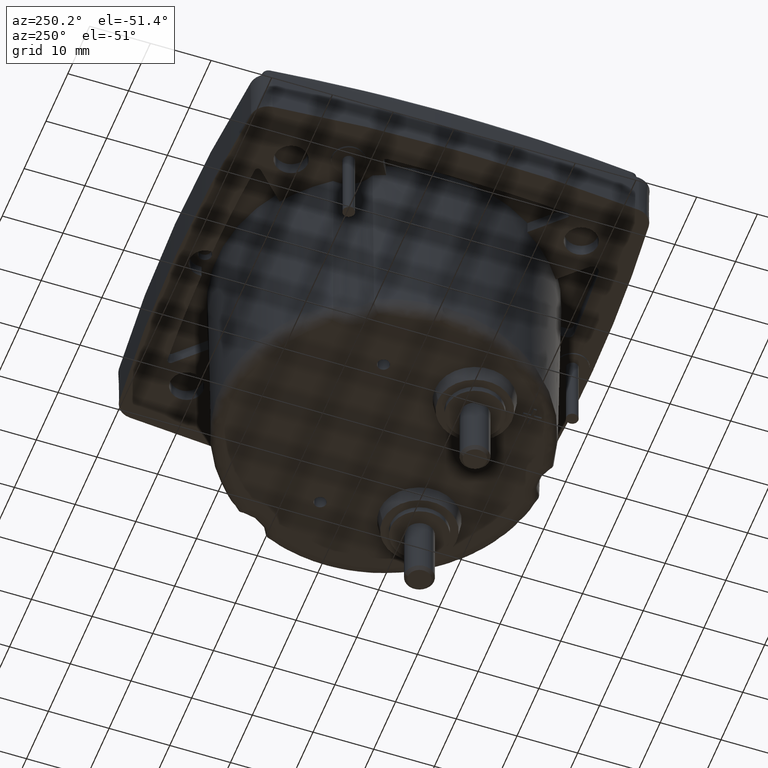
[diagram: clean part render]
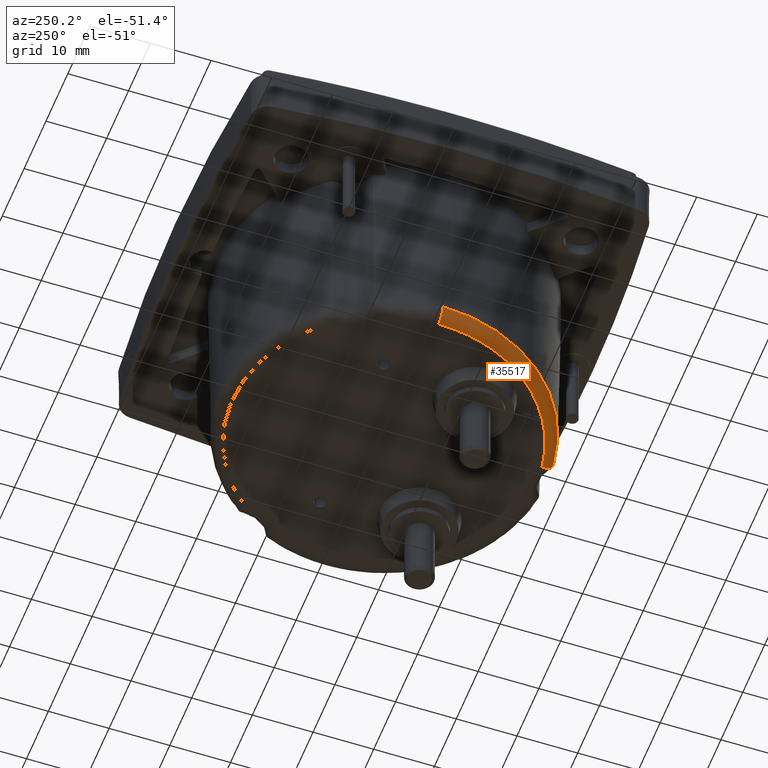
[diagram: same view with one face highlighted and labeled with its STEP entity id]
A machine part, auxiliary view. The second image highlights one B-rep face of the part: STEP entity #35517.
In plain terms, the highlighted face is a freeform B-spline surface patch.
Its self-contained STEP definition (entity closure, byte-faithful):
#342 = CARTESIAN_POINT ( 'NONE',  ( -0.1139998865163800029, -1.196829030004630479, -1.243707193137571387 ) ) ;
#358 = EDGE_LOOP ( 'NONE', ( #39359, #17371, #12204, #43455 ) ) ;
#587 = CARTESIAN_POINT ( 'NONE',  ( 0.4476660976258464708, -1.262292144359757673, -1.243707193137571165 ) ) ;
#1820 = CARTESIAN_POINT ( 'NONE',  ( 0.4359724932968750410, -1.250420615241126354, -1.237343623403693194 ) ) ;
#2713 = CIRCLE ( 'NONE', #21514, 1.061212311381397821 ) ;
#3936 = CARTESIAN_POINT ( 'NONE',  ( 0.4283174155209925060, -1.210148513970716655, -1.270176007990954092 ) ) ;
#4190 = CARTESIAN_POINT ( 'NONE',  ( 0.4276925035477410209, -1.206557683907257816, -1.271446400270724864 ) ) ;
#4538 = CARTESIAN_POINT ( 'NONE',  ( -0.4575446375309926705, -0.7571703503663564927, -1.275590944881890509 ) ) ;
#4773 = FACE_OUTER_BOUND ( 'NONE', #358, .T. ) ;
#5431 = EDGE_CURVE ( 'NONE', #37904, #17091, #45162, .T. ) ;
#6691 = DIRECTION ( 'NONE',  ( -1.000000000000000000, 0.000000000000000000, 0.000000000000000000 ) ) ;
#6891 = CARTESIAN_POINT ( 'NONE',  ( 0.4234687073511456123, -1.180434525700972515, -1.275590944881889843 ) ) ;
#7319 = CARTESIAN_POINT ( 'NONE',  ( 0.5704286375722834590, -0.2090036857513889734, -1.198224992633279529 ) ) ;
#7425 = CARTESIAN_POINT ( 'NONE',  ( -0.4120637148025882990, -0.2090036892705135485, -1.275590944881889843 ) ) ;
#7626 = CARTESIAN_POINT ( 'NONE',  ( 0.4314657507990192764, -1.227592980815988888, -1.261134808227817761 ) ) ;
#7860 = CARTESIAN_POINT ( 'NONE',  ( 0.4267899105815091687, -1.201281460412516156, -1.273014060127122926 ) ) ;
#8109 = CARTESIAN_POINT ( 'NONE',  ( 0.4271743252855529360, -1.203545783583061191, -1.272388148840947419 ) ) ;
#8608 = CARTESIAN_POINT ( 'NONE',  ( -0.4120555078996957499, -0.7182116726812014518, -1.275590944881890065 ) ) ;
#9659 = CARTESIAN_POINT ( 'NONE',  ( 0.4384331776564109884, -1.261975085341303204, -1.198224992633031505 ) ) ;
#11771 = CARTESIAN_POINT ( 'NONE',  ( 0.4302515744192162983, -1.221064350942299370, -1.265303980137897133 ) ) ;
#11881 = CARTESIAN_POINT ( 'NONE',  ( -0.1145122920087241342, -1.197568577107150922, -1.198224992632858310 ) ) ;
#12204 = ORIENTED_EDGE ( 'NONE', *, *, #37512, .T. ) ;
#12610 = CARTESIAN_POINT ( 'NONE',  ( -0.4907836737845894803, -0.7748950637216911463, -1.198224992632858310 ) ) ;
#14536 = DIRECTION ( 'NONE',  ( 0.000000000000000000, 1.000000000000000000, 0.000000000000000000 ) ) ;
#15212 = CARTESIAN_POINT ( 'NONE',  ( 0.4284018717039177471, -1.210632207852501363, -1.269991083619488315 ) ) ;
#15463 = CARTESIAN_POINT ( 'NONE',  ( 0.4245579620095912832, -1.187563064469837837, -1.275590944881890065 ) ) ;
#15809 = CARTESIAN_POINT ( 'NONE',  ( -0.4907836737845895358, -0.2090036857513891400, -1.198224992632858088 ) ) ;
#17033 = CARTESIAN_POINT ( 'NONE',  ( 0.4365562280952805518, -1.253209482750441417, -1.232418349560894910 ) ) ;
#17091 = VERTEX_POINT ( 'NONE', #43671 ) ;
#17260 = CARTESIAN_POINT ( 'NONE',  ( 0.4378899743543742118, -1.259502556576332921, -1.218847871037296970 ) ) ;
#17371 = ORIENTED_EDGE ( 'NONE', *, *, #21260, .T. ) ;
#18908 = CARTESIAN_POINT ( 'NONE',  ( 0.4330998999105908354, -1.236107546636922905, -1.254383178737044524 ) ) ;
#19148 = CARTESIAN_POINT ( 'NONE',  ( 0.4278554845925205408, -1.207497669011365904, -1.271131781386068305 ) ) ;
#19501 = CARTESIAN_POINT ( 'NONE',  ( -0.4899897790217009330, -0.7744717194045110942, -1.243707193137571387 ) ) ;
#19742 = CARTESIAN_POINT ( 'NONE',  ( -0.06369857459921873799, -1.124229906776793797, -1.275590944881889843 ) ) ;
#20714 = CARTESIAN_POINT ( 'NONE',  ( 0.4332161518617290152, -1.236703037453853460, -1.253840888614208504 ) ) ;
#21260 = EDGE_CURVE ( 'NONE', #37904, #37385, #25467, .T. ) ;
#21514 = AXIS2_PLACEMENT_3D ( 'NONE', #7319, #22036, #40699 ) ;
#22036 = DIRECTION ( 'NONE',  ( 0.000000000000000000, 0.000000000000000000, 1.000000000000000000 ) ) ;
#22580 = CARTESIAN_POINT ( 'NONE',  ( 0.4326737907529947802, -1.233916947579940082, -1.256307647449837361 ) ) ;
#22822 = CARTESIAN_POINT ( 'NONE',  ( 0.4281952105764654792, -1.209448556063787983, -1.270438521303988599 ) ) ;
#23061 = CARTESIAN_POINT ( 'NONE',  ( 0.4324050108827983130, -1.232522901343069632, -1.257442806351625864 ) ) ;
#23235 = B_SPLINE_CURVE_WITH_KNOTS ( 'NONE', 3,
 ( #41741, #15463, #41489, #7860, #8109, #4190, #19148, #30171, #22822, #3936, #34125, #15212, #30423, #45169, #11771, #7626, #26750, #23061, #22580, #37559, #18908, #43055, #20714, #23900, #46492, #47212, #1820, #43294, #17033, #27583, #46247, #46981, #17260, #32008, #9659 ),
 .UNSPECIFIED., .F., .F.,
 ( 4, 2, 2, 2, 1, 1, 2, 2, 2, 2, 1, 1, 2, 2, 2, 2, 1, 2, 2, 4 ),
 ( 0.000000000000000000, 0.1250000000001151024, 0.1875000000001742217, 0.2187500000002037537, 0.2343750000002170764, 0.2421875000002214895, 0.2460937500002194078, 0.2500000000002173262, 0.3750000000001650902, 0.4375000000001406097, 0.4687500000001270095, 0.4843750000001227352, 0.4921875000001205702, 0.5000000000001184608, 0.6250000000000707212, 0.6875000000000468514, 0.7187500000000394129, 0.7343750000000327516, 0.7500000000000290878, 1.000000000000000000 ),
 .UNSPECIFIED. ) ;
#23894 = CARTESIAN_POINT ( 'NONE',  ( -0.4575446375309927816, -0.2090036857513891677, -1.275590944881890509 ) ) ;
#23900 = CARTESIAN_POINT ( 'NONE',  ( 0.4340522356524874059, -1.240978552568491766, -1.249871988724940319 ) ) ;
#24066 = CARTESIAN_POINT ( 'NONE',  ( -0.08001050151304463232, -1.104267220361647928, -1.275590944881890065 ) ) ;
#25467 =( BOUNDED_CURVE ( )  B_SPLINE_CURVE ( 3, ( #27012, #8608, #24066, #35368 ),
 .UNSPECIFIED., .F., .F. ) 
 B_SPLINE_CURVE_WITH_KNOTS ( ( 4, 4 ),
 ( 0.2081565305515306330, 1.000000000000000000 ),
 .UNSPECIFIED. ) 
 CURVE ( )  GEOMETRIC_REPRESENTATION_ITEM ( )  RATIONAL_B_SPLINE_CURVE ( ( 1.000000000000000000, 0.8387660308011147814, 0.8387660308011147814, 1.000000000000000000 ) ) 
 REPRESENTATION_ITEM ( '' )  );
#26750 = CARTESIAN_POINT ( 'NONE',  ( 0.4318530045136701467, -1.229640502708192251, -1.259682458250033443 ) ) ;
#26851 = CARTESIAN_POINT ( 'NONE',  ( 0.4514222073991134287, -1.230065154960757745, -1.275590944881890509 ) ) ;
#27012 = CARTESIAN_POINT ( 'NONE',  ( -0.4120637148025882990, -0.2090036892705135485, -1.275590944881889843 ) ) ;
#27583 = CARTESIAN_POINT ( 'NONE',  ( 0.4367314559557832210, -1.254039123448322357, -1.230756557239329085 ) ) ;
#28314 = EDGE_CURVE ( 'NONE', #17091, #46069, #2713, .T. ) ;
#30171 = CARTESIAN_POINT ( 'NONE',  ( 0.4280845379822841301, -1.208813884193920218, -1.270668226141215884 ) ) ;
#30273 = CARTESIAN_POINT ( 'NONE',  ( -0.4899897790217009330, -0.2090036857513891677, -1.243707193137571165 ) ) ;
#30423 = CARTESIAN_POINT ( 'NONE',  ( 0.4284056467286246339, -1.210653819291271915, -1.269982900279138072 ) ) ;
#31517 = CARTESIAN_POINT ( 'NONE',  ( 0.4384331776564109884, -1.261975085341303204, -1.198224992633031505 ) ) ;
#32008 = CARTESIAN_POINT ( 'NONE',  ( 0.4383928185166341418, -1.261789878404824261, -1.208465501720488833 ) ) ;
#32466 = CARTESIAN_POINT ( 'NONE',  ( -0.4120555088116457099, -0.2090036857513889734, -1.196850787401574800 ) ) ;
#33985 = CARTESIAN_POINT ( 'NONE',  ( -0.09305873728996515160, -1.166604985834078345, -1.275590944881890509 ) ) ;
#34125 = CARTESIAN_POINT ( 'NONE',  ( 0.4283682902277514137, -1.210439875856469616, -1.270064860217677838 ) ) ;
#34227 = CARTESIAN_POINT ( 'NONE',  ( -0.4120555088116439890, -0.7329132762086445485, -1.275590944881889843 ) ) ;
#35368 = CARTESIAN_POINT ( 'NONE',  ( 0.4234687073511456123, -1.180434525700972515, -1.275590944881889843 ) ) ;
#35517 = ADVANCED_FACE ( 'NONE', ( #4773 ), #44352, .T. ) ;
#37385 = VERTEX_POINT ( 'NONE', #6891 ) ;
#37512 = EDGE_CURVE ( 'NONE', #37385, #46069, #23235, .T. ) ;
#37559 = CARTESIAN_POINT ( 'NONE',  ( 0.4329741043976461645, -1.235462370064289939, -1.254963080959631272 ) ) ;
#37904 = VERTEX_POINT ( 'NONE', #7425 ) ;
#37907 = CARTESIAN_POINT ( 'NONE',  ( 0.4475741900014434949, -1.263080701195450795, -1.198224992632858088 ) ) ;
#38152 = CARTESIAN_POINT ( 'NONE',  ( -0.4120555088116441556, -0.2090036857513891400, -1.275590944881889843 ) ) ;
#39359 = ORIENTED_EDGE ( 'NONE', *, *, #5431, .F. ) ;
#39661 = AXIS2_PLACEMENT_3D ( 'NONE', #32466, #14536, #6691 ) ;
#40699 = DIRECTION ( 'NONE',  ( -1.000000000000000000, 0.000000000000000000, -3.861406380747935715E-16 ) ) ;
#41489 = CARTESIAN_POINT ( 'NONE',  ( 0.4255327000208910526, -1.193695460697864918, -1.274703461598227783 ) ) ;
#41589 = CARTESIAN_POINT ( 'NONE',  ( 0.4566883937404204730, -1.184881882469003722, -1.275590944881889843 ) ) ;
#41741 = CARTESIAN_POINT ( 'NONE',  ( 0.4234687073511456123, -1.180434525700972515, -1.275590944881889843 ) ) ;
#43055 = CARTESIAN_POINT ( 'NONE',  ( 0.4331831092453625742, -1.236533877044949659, -1.253995837710131234 ) ) ;
#43294 = CARTESIAN_POINT ( 'NONE',  ( 0.4363674999072187366, -1.252310882334071174, -1.234067494345470806 ) ) ;
#43455 = ORIENTED_EDGE ( 'NONE', *, *, #28314, .F. ) ;
#43671 = CARTESIAN_POINT ( 'NONE',  ( -0.4907836737968483964, -0.2090036857513889734, -1.198224992633279973 ) ) ;
#44352 =( BOUNDED_SURFACE ( )  B_SPLINE_SURFACE ( 3, 3, ( 
 ( #41589, #19742, #34227, #38152 ),
 ( #26851, #33985, #4538, #23894 ),
 ( #587, #342, #19501, #30273 ),
 ( #37907, #11881, #12610, #15809 ) ),
 .UNSPECIFIED., .F., .F., .T. ) 
 B_SPLINE_SURFACE_WITH_KNOTS ( ( 4, 4 ),
 ( 4, 4 ),
 ( 0.000000000000000000, 1.000000000000000000 ),
 ( 0.000000000000000000, 1.000000000000000000 ),
 .UNSPECIFIED. ) 
 GEOMETRIC_REPRESENTATION_ITEM ( )  RATIONAL_B_SPLINE_SURFACE ( (
 ( 1.000000000000000000, 0.8312775558935877607, 0.8312775558935877607, 1.000000000000000000),
 ( 0.8088336327694533034, 0.6723652453731228107, 0.6723652453731228107, 0.8088336327694533034),
 ( 0.8088336327694533034, 0.6723652453731228107, 0.6723652453731228107, 0.8088336327694533034),
 ( 1.000000000000000000, 0.8312775558935877607, 0.8312775558935877607, 1.000000000000000000) ) ) 
 REPRESENTATION_ITEM ( '' )  SURFACE ( )  );
#45162 = CIRCLE ( 'NONE', #39661, 0.07874015748031495954 ) ;
#45169 = CARTESIAN_POINT ( 'NONE',  ( 0.4293726458750226627, -1.216193193498553260, -1.267834586900738136 ) ) ;
#46069 = VERTEX_POINT ( 'NONE', #31517 ) ;
#46247 = CARTESIAN_POINT ( 'NONE',  ( 0.4368452367984375639, -1.254577007918148857, -1.229646309281234640 ) ) ;
#46492 = CARTESIAN_POINT ( 'NONE',  ( 0.4347588975747714302, -1.244505218933594115, -1.245828702199528015 ) ) ;
#46981 = CARTESIAN_POINT ( 'NONE',  ( 0.4368959715161089830, -1.254816484819685884, -1.229137994452018434 ) ) ;
#47212 = CARTESIAN_POINT ( 'NONE',  ( 0.4356857580509615469, -1.249036240866651992, -1.239498227942650965 ) ) ;